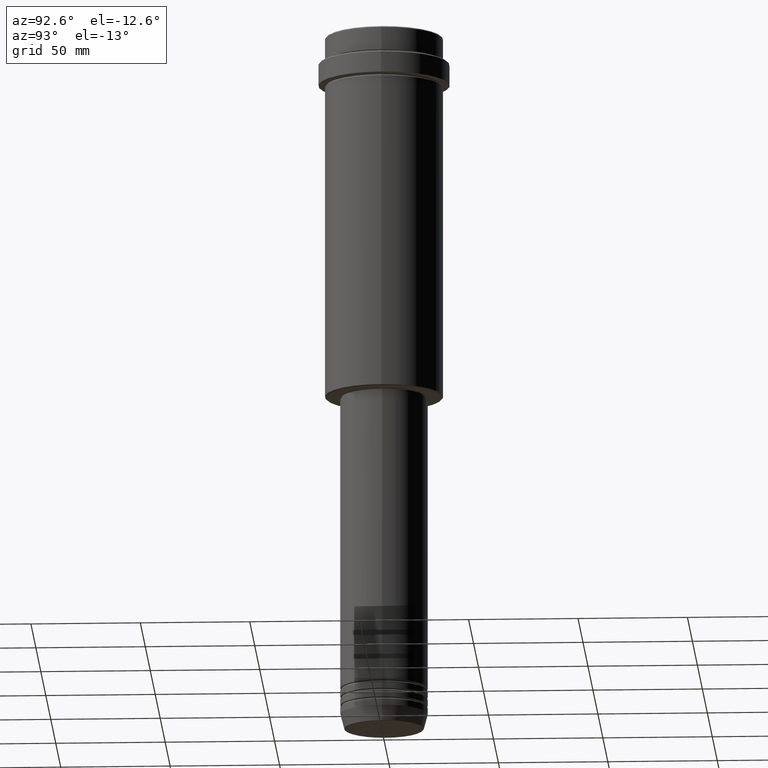
[diagram: clean part render]
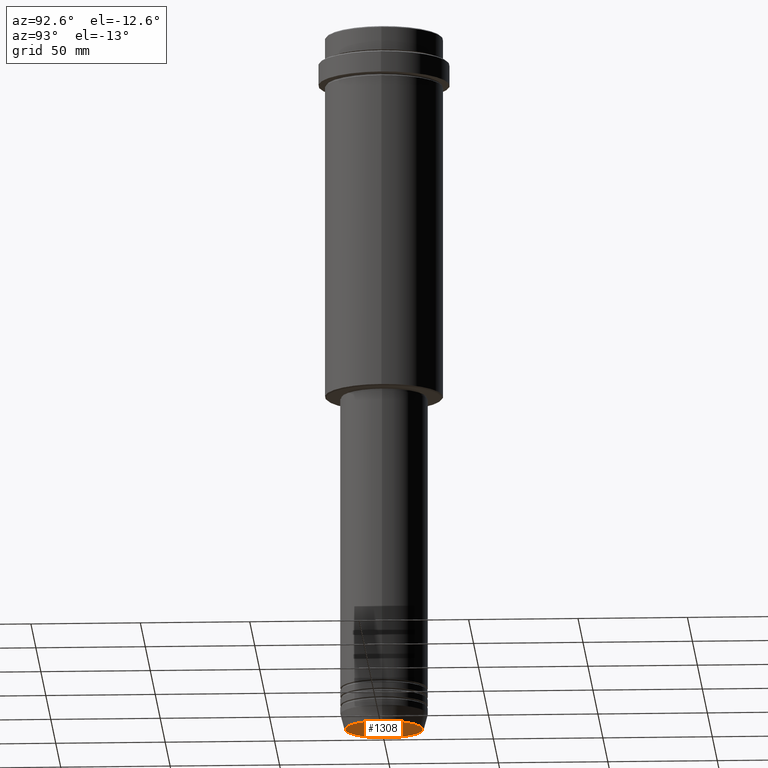
[diagram: same view with one face highlighted and labeled with its STEP entity id]
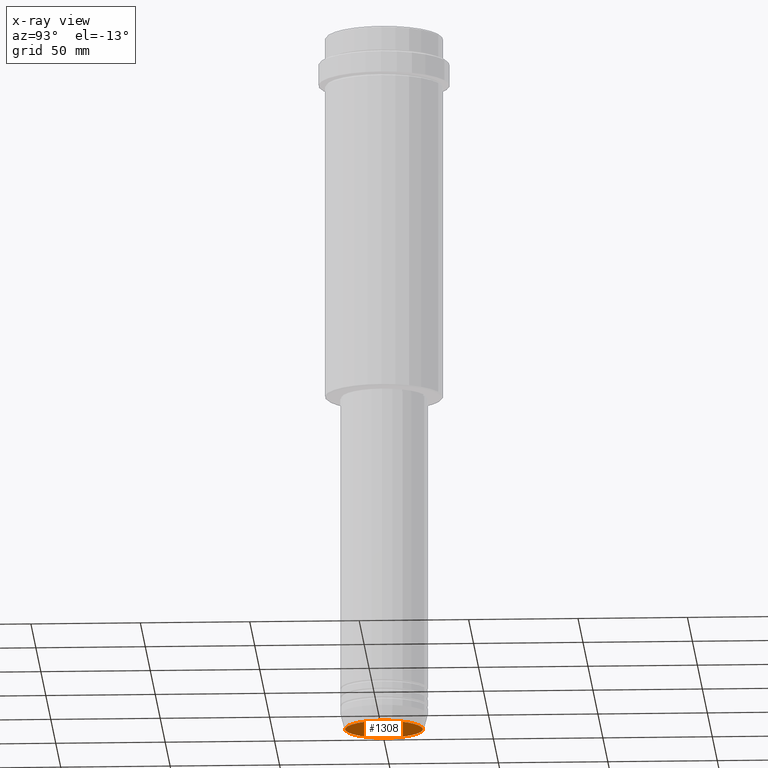
[diagram: x-ray of the same camera — body ghosted, the highlighted face saturated]
A machine part, auxiliary view. The second image highlights one B-rep face of the part: STEP entity #1308.
The next image is the same camera in x-ray: the body ghosted, the highlighted face saturated — about 0% of this face is hidden behind the body in this view.
In plain terms, the highlighted planar face has unit normal (0, -0, 1).
Its self-contained STEP definition (entity closure, byte-faithful):
#89 = ORIENTED_EDGE ( 'NONE', *, *, #1014, .T. ) ;
#153 = CIRCLE ( 'NONE', #941, 17.74069215899265473 ) ;
#161 = AXIS2_PLACEMENT_3D ( 'NONE', #1180, #793, #538 ) ;
#167 = EDGE_CURVE ( 'NONE', #1065, #599, #153, .T. ) ;
#470 = FACE_OUTER_BOUND ( 'NONE', #736, .T. ) ;
#481 = DIRECTION ( 'NONE',  ( 1.000000000000000000, 0.000000000000000000, 0.000000000000000000 ) ) ;
#538 = DIRECTION ( 'NONE',  ( 1.000000000000000000, 0.000000000000000000, 0.000000000000000000 ) ) ;
#571 = CARTESIAN_POINT ( 'NONE',  ( 0.000000000000000000, 0.000000000000000000, -323.0000000000000000 ) ) ;
#599 = VERTEX_POINT ( 'NONE', #1220 ) ;
#685 = DIRECTION ( 'NONE',  ( 0.000000000000000000, 0.000000000000000000, -1.000000000000000000 ) ) ;
#694 = ORIENTED_EDGE ( 'NONE', *, *, #167, .T. ) ;
#736 = EDGE_LOOP ( 'NONE', ( #694, #89 ) ) ;
#793 = DIRECTION ( 'NONE',  ( 0.000000000000000000, -0.000000000000000000, 1.000000000000000000 ) ) ;
#798 = DIRECTION ( 'NONE',  ( 0.000000000000000000, 0.000000000000000000, -1.000000000000000000 ) ) ;
#838 = CARTESIAN_POINT ( 'NONE',  ( 17.74069215899265473, 0.000000000000000000, -323.0000000000000000 ) ) ;
#861 = PLANE ( 'NONE',  #161 ) ;
#941 = AXIS2_PLACEMENT_3D ( 'NONE', #1340, #798, #481 ) ;
#1014 = EDGE_CURVE ( 'NONE', #599, #1065, #1417, .T. ) ;
#1065 = VERTEX_POINT ( 'NONE', #838 ) ;
#1078 = AXIS2_PLACEMENT_3D ( 'NONE', #571, #685, #1252 ) ;
#1180 = CARTESIAN_POINT ( 'NONE',  ( 0.000000000000000000, 0.000000000000000000, -323.0000000000000000 ) ) ;
#1220 = CARTESIAN_POINT ( 'NONE',  ( -17.74069215899265473, 2.202181136001357170E-15, -323.0000000000000000 ) ) ;
#1252 = DIRECTION ( 'NONE',  ( 1.000000000000000000, 0.000000000000000000, 0.000000000000000000 ) ) ;
#1308 = ADVANCED_FACE ( 'NONE', ( #470 ), #861, .F. ) ;
#1340 = CARTESIAN_POINT ( 'NONE',  ( 0.000000000000000000, 0.000000000000000000, -323.0000000000000000 ) ) ;
#1417 = CIRCLE ( 'NONE', #1078, 17.74069215899265473 ) ;